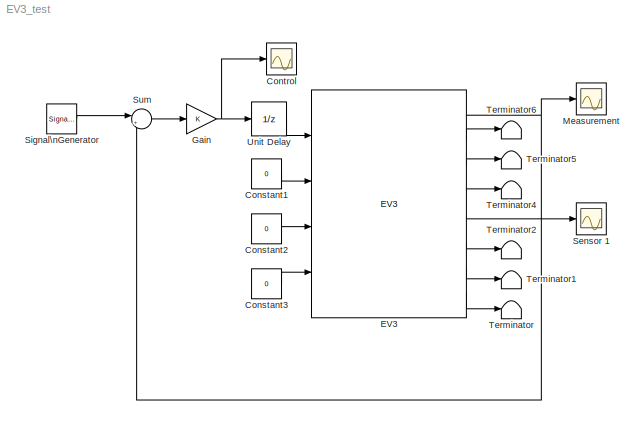
MODEL EV3_test
KIND model
BLOCK [Constant] Constant1
  SID = 3
  Value = 0
BLOCK [Constant] Constant2
  SID = 4
  Value = 0
BLOCK [Constant] Constant3
  SID = 5
  Value = 0
BLOCK [Scope] Control
  Floating = off
  NumInputPorts = 1
  Ports = [1]
  SID = 25
  ScopeSpecificationString = Simulink.scopes.TimeScopeBlockCfg('CurrentConfiguration', extmgr.ConfigurationSet(extmgr.Configuration('Core','General UI',true),extmgr.Configuration('Core','Source UI',true),extmgr.Configuration('Sources','WiredSimulink',true,'DataLoggingVariableName','ScopeData1','DataLoggingSaveFormat','StructureWithTime','DataLoggingLimitDataPoints',true,'DataLoggingDecimation','1','DataLoggingDecimateData',tr...<+1680ch>
BLOCK [Reference] EV3  REF=rpi_blkst/EV3  (lib defined in mdl_5f9edbe601a8, slx_830431f926a7)
  Ports = [4, 8]
  SID = 1
  SourceBlock = rpi_blkst/EV3
  SourceProductName = RPI Blockset
  SourceType = LEGO EV3
  rpi_mask_Ts = 0.01
BLOCK [Gain] Gain
  OutDataTypeStr = Inherit: Inherit via internal rule
  ParamDataTypeStr = Inherit: Inherit via internal rule
  SID = 14
  SaturateOnIntegerOverflow = off
BLOCK [Scope] Measurement
  Floating = off
  NumInputPorts = 1
  Ports = [1]
  SID = 10
  ScopeSpecificationString = Simulink.scopes.TimeScopeBlockCfg('CurrentConfiguration', extmgr.ConfigurationSet(extmgr.Configuration('Core','General UI',true),extmgr.Configuration('Core','Source UI',true),extmgr.Configuration('Sources','WiredSimulink',true,'DataLoggingSaveFormat','StructureWithTime','DataLoggingLimitDataPoints',true,'DataLoggingDecimation','1','DataLoggingDecimateData',true),extmgr.Configuration('Visuals','Tim...<+1641ch>
BLOCK [Scope] Sensor 1
  Floating = off
  NumInputPorts = 1
  Ports = [1]
  SID = 30
  ScopeSpecificationString = Simulink.scopes.TimeScopeBlockCfg('CurrentConfiguration', extmgr.ConfigurationSet(extmgr.Configuration('Core','General UI',true),extmgr.Configuration('Core','Source UI',true),extmgr.Configuration('Sources','WiredSimulink',true,'DataLoggingVariableName','ScopeData2','DataLoggingSaveFormat','StructureWithTime','DataLoggingLimitDataPoints',true,'DataLoggingDecimation','1','DataLoggingDecimateData',tr...<+1677ch>
BLOCK [SignalGenerator] Signal\nGenerator
  Amplitude = 40
  Frequency = 0.5
  Ports = [0, 1]
  SID = 29
  WaveForm = square
BLOCK [Sum] Sum
  IconShape = round
  InputSameDT = off
  Inputs = |+-
  OutDataTypeStr = Inherit: Inherit via internal rule
  Ports = [2, 1]
  SID = 28
  SaturateOnIntegerOverflow = off
BLOCK [Terminator] Terminator
  SID = 6
BLOCK [Terminator] Terminator1
  SID = 7
BLOCK [Terminator] Terminator2
  SID = 8
BLOCK [Terminator] Terminator4
  SID = 11
BLOCK [Terminator] Terminator5
  SID = 12
BLOCK [Terminator] Terminator6
  SID = 13
BLOCK [UnitDelay] Unit Delay
  InputProcessing = Elements as channels (sample based)
  SID = 23
  SampleTime = -1
LINE Constant1:1 -> EV3:2
LINE Constant2:1 -> EV3:3
LINE Constant3:1 -> EV3:4
NET EV3:1 -> Measurement:1, Sum:2
LINE EV3:2 -> Terminator6:1
LINE EV3:3 -> Terminator5:1
LINE EV3:4 -> Terminator4:1
LINE EV3:5 -> Sensor 1:1
LINE EV3:6 -> Terminator2:1
LINE EV3:7 -> Terminator1:1
LINE EV3:8 -> Terminator:1
NET Gain:1 -> Control:1, Unit Delay:1
LINE Signal\nGenerator:1 -> Sum:1
LINE Sum:1 -> Gain:1
LINE Unit Delay:1 -> EV3:1
note: NET lines group one-source signal fan-out (src -> all destinations, sorted); 1:1 wires keep LINE
